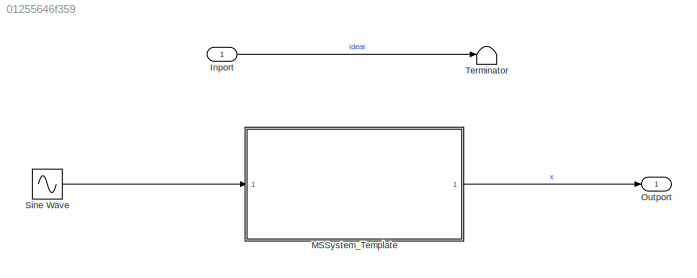
MODEL slx_01255646f359
KIND model
CONFIG AbsTol = auto
CONFIG EnableMultiTasking = off
CONFIG FixedStep = auto
CONFIG MaxStep = 0.01
CONFIG MinStep = auto
CONFIG RelTol = 1e-3
CONFIG SampleTimeConstraint = Unconstrained
CONFIG SolverName = VariableStepAuto
CONFIG StartTime = 0.0
CONFIG StopTime = 100
BLOCK [Inport] Inport
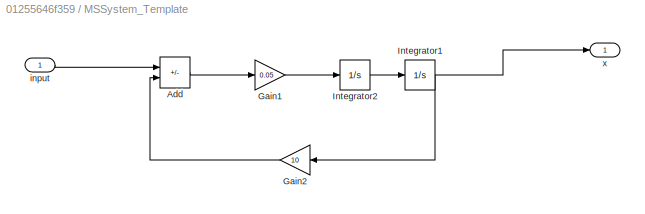
BLOCK [SubSystem] MSSystem_Template
BLOCK [Sum] MSSystem_Template/Add
  IconShape = rectangular
  Inputs = +-
BLOCK [Gain] MSSystem_Template/Gain1
  Gain = 0.05
BLOCK [Gain] MSSystem_Template/Gain2
  Gain = 10
  NameLocation = top
BLOCK [Integrator] MSSystem_Template/Integrator1
BLOCK [Integrator] MSSystem_Template/Integrator2
BLOCK [Inport] MSSystem_Template/input
BLOCK [Outport] MSSystem_Template/x
BLOCK [Outport] Outport
BLOCK [Sin] Sine Wave
  SampleTime = 0
BLOCK [Terminator] Terminator
LINE Inport:1 -> Terminator:1
LINE MSSystem_Template/Add:1 -> MSSystem_Template/Gain1:1
LINE MSSystem_Template/Gain1:1 -> MSSystem_Template/Integrator2:1
LINE MSSystem_Template/Gain2:1 -> MSSystem_Template/Add:2
NET MSSystem_Template/Integrator1:1 -> MSSystem_Template/Gain2:1, MSSystem_Template/x:1
LINE MSSystem_Template/Integrator2:1 -> MSSystem_Template/Integrator1:1
LINE MSSystem_Template/input:1 -> MSSystem_Template/Add:1
LINE MSSystem_Template:1 -> Outport:1
LINE Sine Wave:1 -> MSSystem_Template:1
note: NET lines group one-source signal fan-out (src -> all destinations, sorted); 1:1 wires keep LINE
